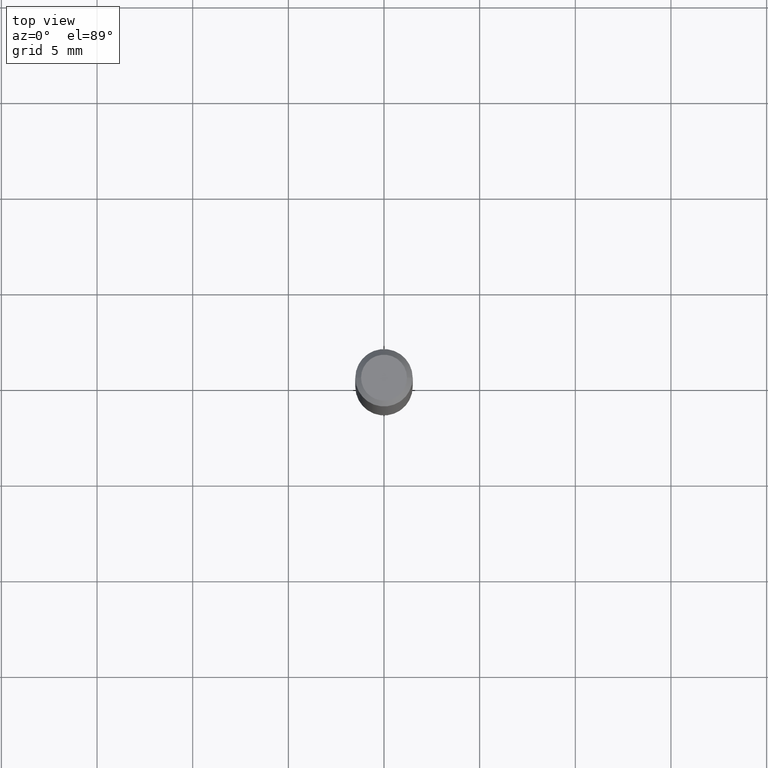
[diagram: clean part render]
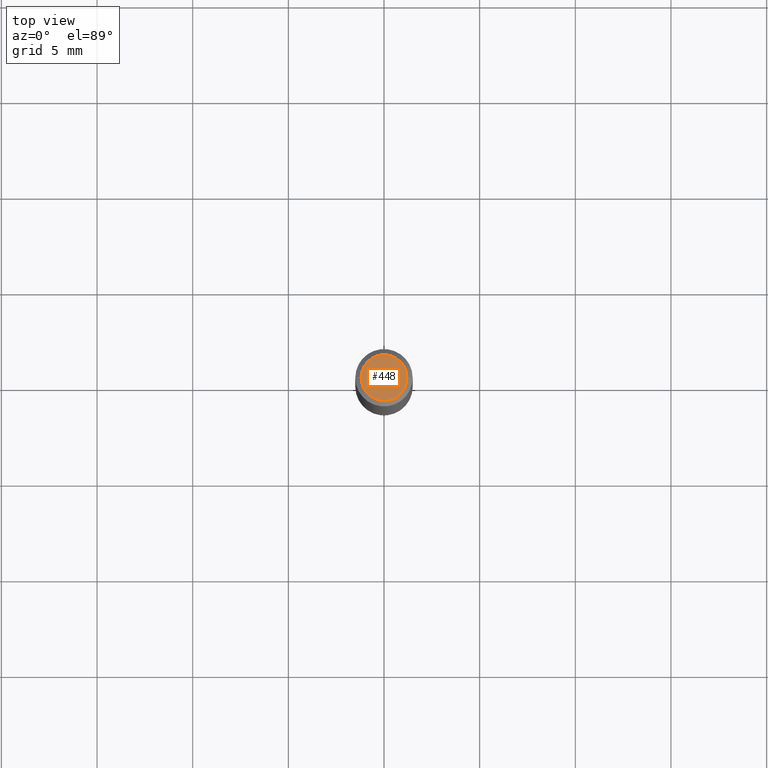
[diagram: same view with one face highlighted and labeled with its STEP entity id]
A machine part, top view. The second image highlights one B-rep face of the part: STEP entity #448.
In plain terms, the highlighted planar face has unit normal (0, -0, -1).
Its self-contained STEP definition (entity closure, byte-faithful):
#6 = AXIS2_PLACEMENT_3D ( 'NONE', #490, #33, #31 ) ;
#9 = EDGE_LOOP ( 'NONE', ( #478, #354 ) ) ;
#11 = DIRECTION ( 'NONE',  ( 2.438088387897960049E-29, -3.491481338843145188E-15, -1.000000000000000000 ) ) ;
#31 = DIRECTION ( 'NONE',  ( 1.000000000000000000, -6.982962677686266711E-15, 4.876185090822587894E-29 ) ) ;
#33 = DIRECTION ( 'NONE',  ( -2.445468806185136597E-29, 3.491481338843145583E-15, 1.000000000000000000 ) ) ;
#57 = CIRCLE ( 'NONE', #240, 0.04724000000000000421 ) ;
#69 = CIRCLE ( 'NONE', #6, 0.04724000000000000421 ) ;
#80 = EDGE_CURVE ( 'NONE', #358, #239, #57, .T. ) ;
#117 = CARTESIAN_POINT ( 'NONE',  ( -0.04724000000000000421, 3.504923541997677355E-16, -3.380025165670481712E-19 ) ) ;
#126 = DIRECTION ( 'NONE',  ( -1.000000000000000000, 6.982962677686265922E-15, -4.876176775795935793E-29 ) ) ;
#160 = FACE_OUTER_BOUND ( 'NONE', #9, .T. ) ;
#180 = CARTESIAN_POINT ( 'NONE',  ( 8.265746106709734507E-48, -1.180129479067563789E-33, -3.380025165646692144E-19 ) ) ;
#239 = VERTEX_POINT ( 'NONE', #117 ) ;
#240 = AXIS2_PLACEMENT_3D ( 'NONE', #180, #253, #441 ) ;
#253 = DIRECTION ( 'NONE',  ( -2.445468806185136597E-29, 3.491481338843145583E-15, 1.000000000000000000 ) ) ;
#286 = EDGE_CURVE ( 'NONE', #239, #358, #69, .T. ) ;
#301 = PLANE ( 'NONE',  #485 ) ;
#354 = ORIENTED_EDGE ( 'NONE', *, *, #80, .T. ) ;
#358 = VERTEX_POINT ( 'NONE', #385 ) ;
#385 = CARTESIAN_POINT ( 'NONE',  ( 0.04724000000000000421, -3.852183633974369345E-16, -3.380025165621689721E-19 ) ) ;
#441 = DIRECTION ( 'NONE',  ( 1.000000000000000000, -6.982962677686266711E-15, 4.876185090822587894E-29 ) ) ;
#448 = ADVANCED_FACE ( 'NONE', ( #160 ), #301, .F. ) ;
#462 = CARTESIAN_POINT ( 'NONE',  ( 4.132873053354867254E-48, -5.900647395337818946E-34, -1.690012582823346072E-19 ) ) ;
#478 = ORIENTED_EDGE ( 'NONE', *, *, #286, .T. ) ;
#485 = AXIS2_PLACEMENT_3D ( 'NONE', #462, #11, #126 ) ;
#490 = CARTESIAN_POINT ( 'NONE',  ( 8.265746106709734507E-48, -1.180129479067563789E-33, -3.380025165646692144E-19 ) ) ;